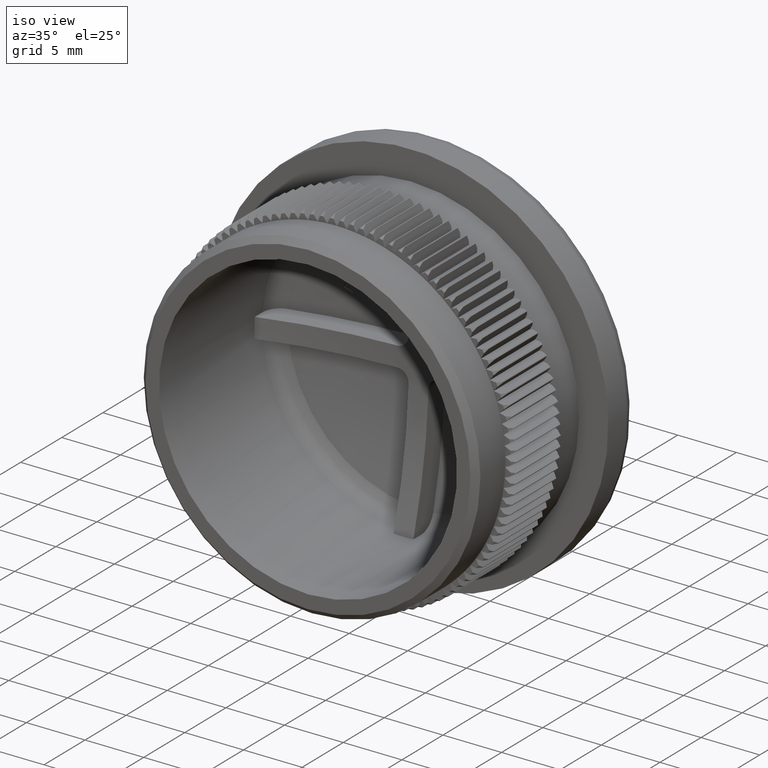
[diagram: clean part render]
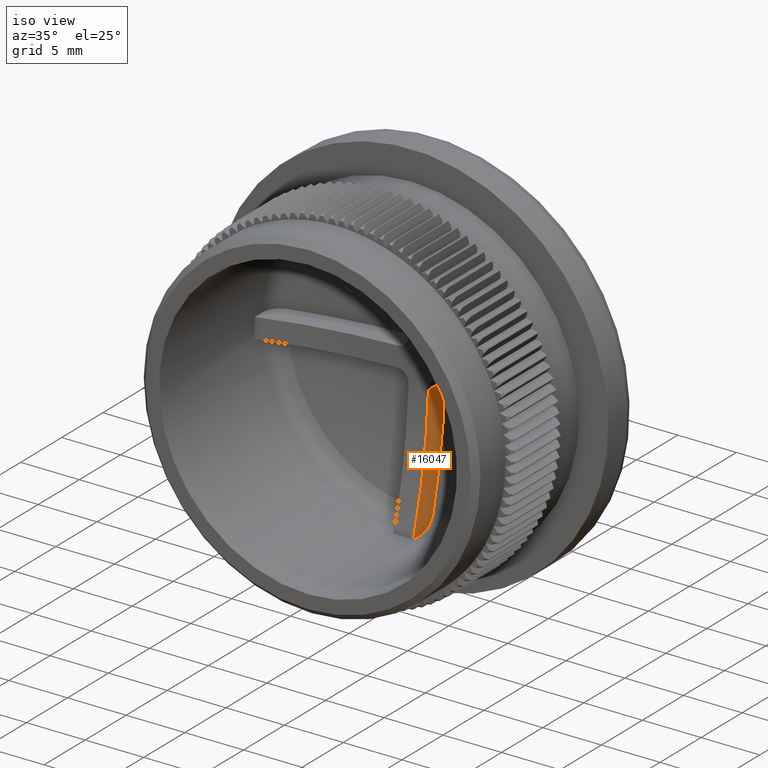
[diagram: same view with one face highlighted and labeled with its STEP entity id]
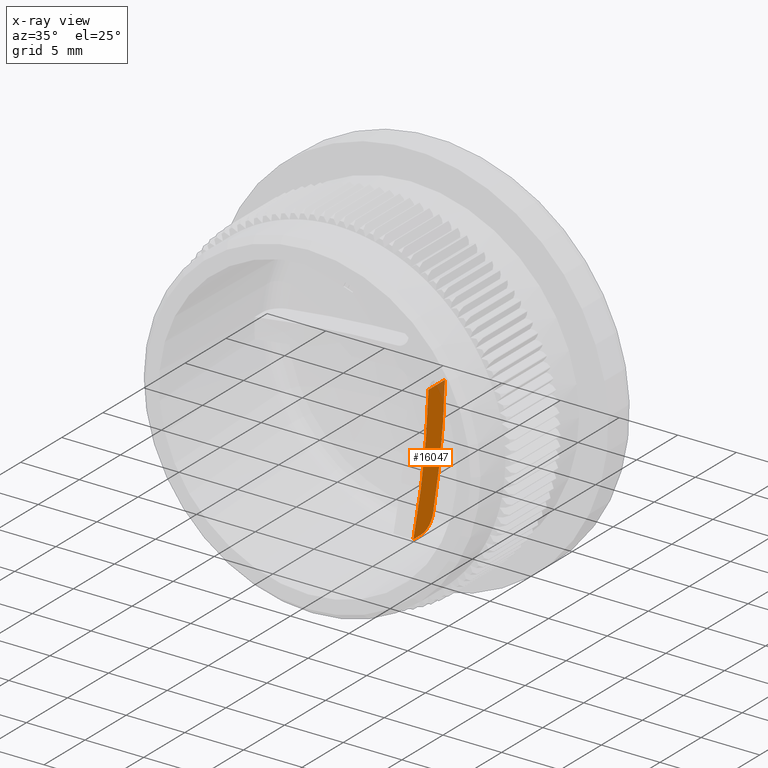
[diagram: x-ray of the same camera — body ghosted, the highlighted face saturated]
A machine part, iso view. The second image highlights one B-rep face of the part: STEP entity #16047.
The next image is the same camera in x-ray: the body ghosted, the highlighted face saturated — about 4% of this face is hidden behind the body in this view.
In plain terms, the highlighted planar face has unit normal (1, 0, 0).
Its self-contained STEP definition (entity closure, byte-faithful):
#433 = CARTESIAN_POINT ( 'NONE',  ( 0.8500000000000037500, 13.90442577109271500, -11.85797548685905600 ) ) ;
#1263 = CARTESIAN_POINT ( 'NONE',  ( 0.8500000000000004200, 13.48350914872437800, -1.850000000000000300 ) ) ;
#1935 = AXIS2_PLACEMENT_3D ( 'NONE', #9762, #15459, #12719 ) ;
#2455 = PLANE ( 'NONE',  #33647 ) ;
#2528 = CARTESIAN_POINT ( 'NONE',  ( 0.8500000000000091900, 12.56150648874854200, -12.67152319178716400 ) ) ;
#3064 = DIRECTION ( 'NONE',  ( 0.0000000000000000000, -1.000000000000000000, 0.0000000000000000000 ) ) ;
#3389 = CARTESIAN_POINT ( 'NONE',  ( 0.8500000000000037500, 13.60777213939289600, -12.25783978145849100 ) ) ;
#3408 = AXIS2_PLACEMENT_3D ( 'NONE', #4990, #4872, #19056 ) ;
#3627 = CARTESIAN_POINT ( 'NONE',  ( 0.8500000000000038600, 12.72566497135670500, -12.67152319178719300 ) ) ;
#4570 = DIRECTION ( 'NONE',  ( 0.0000000000000000000, -1.000000000000000000, 0.0000000000000000000 ) ) ;
#4872 = DIRECTION ( 'NONE',  ( -1.000000000000000000, -0.0000000000000000000, -3.209998865743108900E-016 ) ) ;
#4990 = CARTESIAN_POINT ( 'NONE',  ( 0.8499999999999997600, -30.32041666666353300, 2.728499035881642000E-016 ) ) ;
#5612 = ORIENTED_EDGE ( 'NONE', *, *, #13924, .T. ) ;
#6151 = LINE ( 'NONE', #1263, #9707 ) ;
#6451 = CARTESIAN_POINT ( 'NONE',  ( 0.8500000000000038600, 13.34842579362371300, -12.45851490764068400 ) ) ;
#7743 = ORIENTED_EDGE ( 'NONE', *, *, #15029, .F. ) ;
#9547 = EDGE_CURVE ( 'NONE', #34381, #25497, #33541, .T. ) ;
#9707 = VECTOR ( 'NONE', #4570, 1000.000000000000000 ) ;
#9762 = CARTESIAN_POINT ( 'NONE',  ( 0.8499999999999997600, -30.32041666666353300, 2.728499035881642000E-016 ) ) ;
#10785 = B_SPLINE_CURVE_WITH_KNOTS ( 'NONE', 3,
 ( #26047, #11644, #433, #28872, #3389, #6451, #17459, #20288, #3627, #17689 ),
 .UNSPECIFIED., .F., .F.,
 ( 4, 2, 2, 2, 4 ),
 ( 0.008565166992671435400, 0.009056013392078390500, 0.009546859791485343800, 0.01003770619089229900, 0.01052855259029925400 ),
 .UNSPECIFIED. ) ;
#11644 = CARTESIAN_POINT ( 'NONE',  ( 0.8500000000000035300, 13.97101268456116200, -11.70832525926057600 ) ) ;
#11933 = VECTOR ( 'NONE', #3064, 1000.000000000000000 ) ;
#12719 = DIRECTION ( 'NONE',  ( 3.217057633405839300E-016, 4.434590214664049500E-015, -1.000000000000000000 ) ) ;
#13324 = CARTESIAN_POINT ( 'NONE',  ( 0.8500000000000035300, 14.01282147111647800, -11.54781709785642400 ) ) ;
#13533 = CIRCLE ( 'NONE', #1935, 43.81217201691794100 ) ;
#13924 = EDGE_CURVE ( 'NONE', #22001, #25497, #13533, .T. ) ;
#15010 = CARTESIAN_POINT ( 'NONE',  ( 0.8500000000000037500, 11.61928906477916900, -12.67152319178714700 ) ) ;
#15029 = EDGE_CURVE ( 'NONE', #25889, #18338, #20190, .T. ) ;
#15459 = DIRECTION ( 'NONE',  ( -1.000000000000000000, -0.0000000000000000000, -3.209998865743108900E-016 ) ) ;
#16047 = ADVANCED_FACE ( 'NONE', ( #25408 ), #2455, .T. ) ;
#16493 = ORIENTED_EDGE ( 'NONE', *, *, #31702, .T. ) ;
#16530 = CARTESIAN_POINT ( 'NONE',  ( 0.8500000000000000900, 18.50100000000010100, -0.8500000000000000900 ) ) ;
#16612 = EDGE_CURVE ( 'NONE', #18338, #34381, #10785, .T. ) ;
#16626 = ORIENTED_EDGE ( 'NONE', *, *, #16612, .F. ) ;
#17459 = CARTESIAN_POINT ( 'NONE',  ( 0.8500000000000038600, 13.20105236312393700, -12.53792528061464600 ) ) ;
#17689 = CARTESIAN_POINT ( 'NONE',  ( 0.8500000000000091900, 12.56150648874854200, -12.67152319178716400 ) ) ;
#18338 = VERTEX_POINT ( 'NONE', #13324 ) ;
#19056 = DIRECTION ( 'NONE',  ( 3.218584286602793000E-016, 1.953869990455342700E-014, -1.000000000000000000 ) ) ;
#20190 = CIRCLE ( 'NONE', #3408, 45.81253194821977100 ) ;
#20288 = CARTESIAN_POINT ( 'NONE',  ( 0.8500000000000038600, 12.89059904180715500, -12.64407796977995300 ) ) ;
#20418 = ORIENTED_EDGE ( 'NONE', *, *, #9547, .F. ) ;
#22001 = VERTEX_POINT ( 'NONE', #34746 ) ;
#22202 = DIRECTION ( 'NONE',  ( 1.000000000000000000, 0.0000000000000000000, 3.209998865743108900E-016 ) ) ;
#25380 = DIRECTION ( 'NONE',  ( 3.209998865743108900E-016, 0.0000000000000000000, -1.000000000000000000 ) ) ;
#25408 = FACE_OUTER_BOUND ( 'NONE', #26235, .T. ) ;
#25497 = VERTEX_POINT ( 'NONE', #15010 ) ;
#25889 = VERTEX_POINT ( 'NONE', #27776 ) ;
#26047 = CARTESIAN_POINT ( 'NONE',  ( 0.8500000000000035300, 14.01282147111647800, -11.54781709785642400 ) ) ;
#26235 = EDGE_LOOP ( 'NONE', ( #7743, #16493, #5612, #20418, #16626 ) ) ;
#27776 = CARTESIAN_POINT ( 'NONE',  ( 0.8500000000000003100, 15.45474672470686900, -1.850000000000000300 ) ) ;
#28872 = CARTESIAN_POINT ( 'NONE',  ( 0.8500000000000035300, 13.72230262762543500, -12.13457039605782300 ) ) ;
#31263 = CARTESIAN_POINT ( 'NONE',  ( 0.8500000000000091900, 18.50100000000010100, -12.67152319178716400 ) ) ;
#31702 = EDGE_CURVE ( 'NONE', #25889, #22001, #6151, .T. ) ;
#33541 = LINE ( 'NONE', #31263, #11933 ) ;
#33647 = AXIS2_PLACEMENT_3D ( 'NONE', #16530, #22202, #25380 ) ;
#34381 = VERTEX_POINT ( 'NONE', #2528 ) ;
#34746 = CARTESIAN_POINT ( 'NONE',  ( 0.8500000000000003100, 13.45267914389124200, -1.850000000000000300 ) ) ;